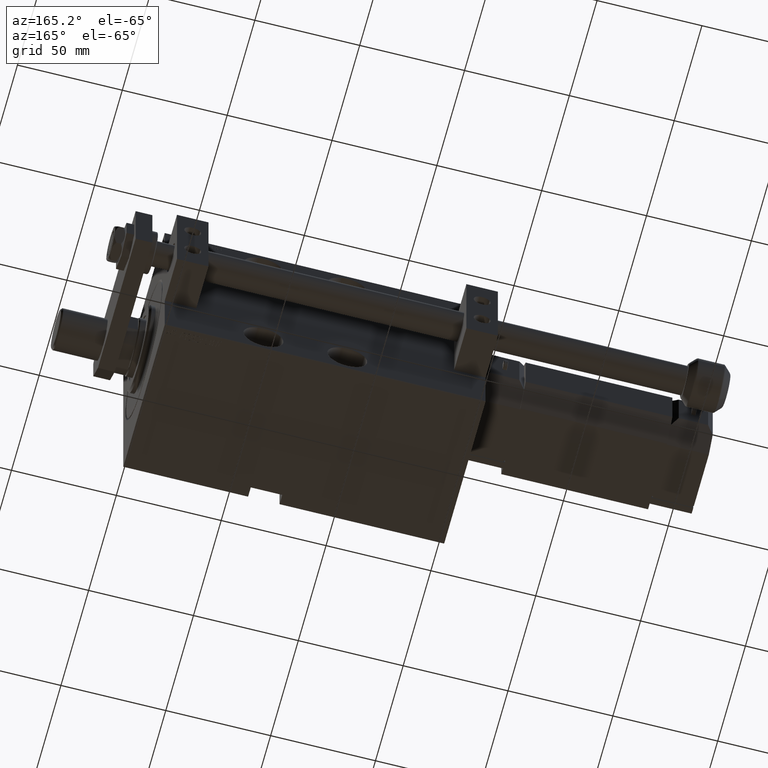
[diagram: clean part render]
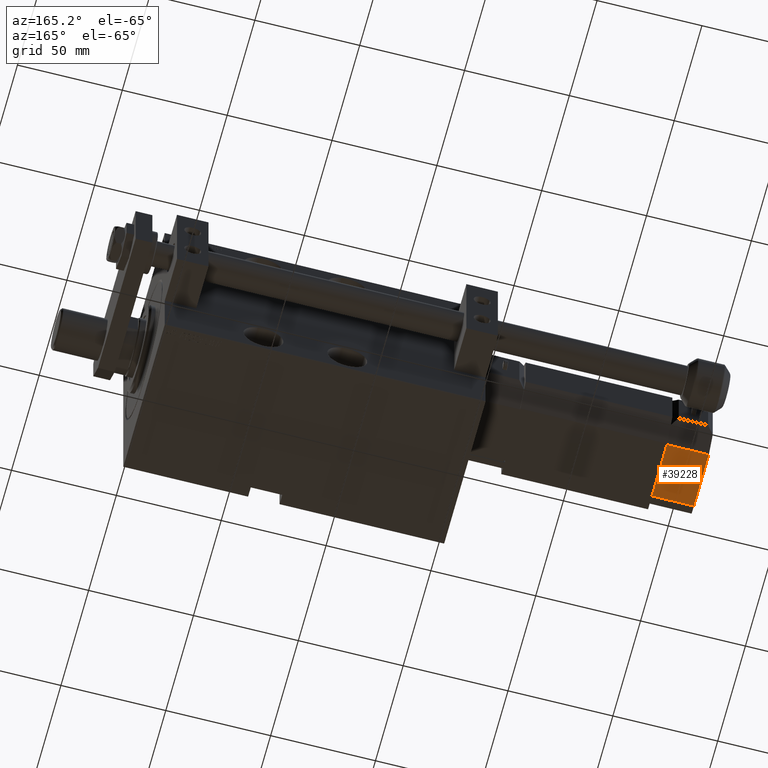
[diagram: same view with one face highlighted and labeled with its STEP entity id]
A machine part, auxiliary view. The second image highlights one B-rep face of the part: STEP entity #39228.
In plain terms, the highlighted planar face has unit normal (0, 0, 1).
Its self-contained STEP definition (entity closure, byte-faithful):
#93 = CARTESIAN_POINT ( 'NONE',  ( 20.00000000000005329, -13.49999999999996092, 10.00000000000000000 ) ) ;
#1731 = VERTEX_POINT ( 'NONE', #19829 ) ;
#7360 = CARTESIAN_POINT ( 'NONE',  ( 20.00000000000005329, -13.49999999999996092, -10.00000000000000000 ) ) ;
#7630 = DIRECTION ( 'NONE',  ( -0.000000000000000000, -0.000000000000000000, -1.000000000000000000 ) ) ;
#8216 = EDGE_LOOP ( 'NONE', ( #9864, #49251, #38849, #22208 ) ) ;
#8453 = DIRECTION ( 'NONE',  ( 1.284980352575412699E-16, 1.000000000000000000, 0.000000000000000000 ) ) ;
#9864 = ORIENTED_EDGE ( 'NONE', *, *, #26424, .T. ) ;
#10152 = CARTESIAN_POINT ( 'NONE',  ( 20.00000000000005684, 13.50000000000003730, -10.00000000000000000 ) ) ;
#11671 = DIRECTION ( 'NONE',  ( 1.284980352575412699E-16, 1.000000000000000000, 0.000000000000000000 ) ) ;
#14745 = PLANE ( 'NONE',  #47295 ) ;
#16152 = CARTESIAN_POINT ( 'NONE',  ( 20.00000000000005684, 13.50000000000003730, 10.00000000000000000 ) ) ;
#18780 = CARTESIAN_POINT ( 'NONE',  ( 20.00000000000005329, -13.49999999999996092, 10.00000000000000000 ) ) ;
#19267 = LINE ( 'NONE', #46337, #30013 ) ;
#19829 = CARTESIAN_POINT ( 'NONE',  ( 20.00000000000005329, -13.49999999999996092, -10.00000000000000000 ) ) ;
#22208 = ORIENTED_EDGE ( 'NONE', *, *, #30125, .T. ) ;
#22338 = VERTEX_POINT ( 'NONE', #47479 ) ;
#26374 = DIRECTION ( 'NONE',  ( -1.284980352575412699E-16, -1.000000000000000000, 0.000000000000000000 ) ) ;
#26424 = EDGE_CURVE ( 'NONE', #1731, #28407, #46576, .T. ) ;
#26872 = CARTESIAN_POINT ( 'NONE',  ( 20.00000000000005684, 13.50000000000003730, 10.00000000000000000 ) ) ;
#28079 = EDGE_CURVE ( 'NONE', #37975, #28407, #42299, .T. ) ;
#28407 = VERTEX_POINT ( 'NONE', #10152 ) ;
#30013 = VECTOR ( 'NONE', #44224, 1000.000000000000000 ) ;
#30125 = EDGE_CURVE ( 'NONE', #22338, #1731, #19267, .T. ) ;
#37975 = VERTEX_POINT ( 'NONE', #16152 ) ;
#38266 = DIRECTION ( 'NONE',  ( -1.000000000000000000, 1.284980352575412699E-16, 0.000000000000000000 ) ) ;
#38849 = ORIENTED_EDGE ( 'NONE', *, *, #41884, .F. ) ;
#39228 = ADVANCED_FACE ( 'NONE', ( #45594 ), #14745, .F. ) ;
#39719 = VECTOR ( 'NONE', #11671, 1000.000000000000000 ) ;
#41884 = EDGE_CURVE ( 'NONE', #22338, #37975, #46165, .T. ) ;
#42299 = LINE ( 'NONE', #26872, #46933 ) ;
#44224 = DIRECTION ( 'NONE',  ( -0.000000000000000000, -0.000000000000000000, -1.000000000000000000 ) ) ;
#45594 = FACE_OUTER_BOUND ( 'NONE', #8216, .T. ) ;
#46165 = LINE ( 'NONE', #93, #49679 ) ;
#46337 = CARTESIAN_POINT ( 'NONE',  ( 20.00000000000005329, -13.49999999999996092, 10.00000000000000000 ) ) ;
#46576 = LINE ( 'NONE', #7360, #39719 ) ;
#46933 = VECTOR ( 'NONE', #7630, 1000.000000000000000 ) ;
#47295 = AXIS2_PLACEMENT_3D ( 'NONE', #18780, #38266, #26374 ) ;
#47479 = CARTESIAN_POINT ( 'NONE',  ( 20.00000000000005329, -13.49999999999996092, 10.00000000000000000 ) ) ;
#49251 = ORIENTED_EDGE ( 'NONE', *, *, #28079, .F. ) ;
#49679 = VECTOR ( 'NONE', #8453, 1000.000000000000000 ) ;